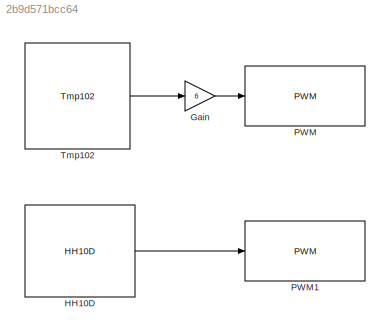
MODEL slx_2b9d571bcc64
KIND model
BLOCK [Gain] Gain
  Gain = 6
  OutDataTypeStr = Inherit: Inherit via internal rule
  ParamDataTypeStr = Inherit: Inherit via internal rule
  SaturateOnIntegerOverflow = off
BLOCK [Reference] HH10D  REF=FunWithArduinoLib/HH10D
  Ports = [0, 1]
  SourceBlock = FunWithArduinoLib/HH10D
  SourceType = HH10D
  interruptNum = 1
  sampleTime = 1.2
BLOCK [Reference] PWM  REF=arduinolib/PWM
  Ports = [1]
  SourceBlock = arduinolib/PWM
  SourceType = Arduino PWM
  blockPlatform = arduino
  pinNumber = 9
BLOCK [Reference] PWM1  REF=arduinolib/PWM
  Ports = [1]
  SourceBlock = arduinolib/PWM
  SourceType = Arduino PWM
  blockPlatform = arduino
  pinNumber = 6
BLOCK [Reference] Tmp102  REF=FunWithArduinoLib/Tmp102
  Ports = [0, 1]
  SourceBlock = FunWithArduinoLib/Tmp102
  SourceType = TMP 102
  deviceAddress = 72
  sampleTime = 0.1
LINE Gain:1 -> PWM:1
LINE HH10D:1 -> PWM1:1
LINE Tmp102:1 -> Gain:1
